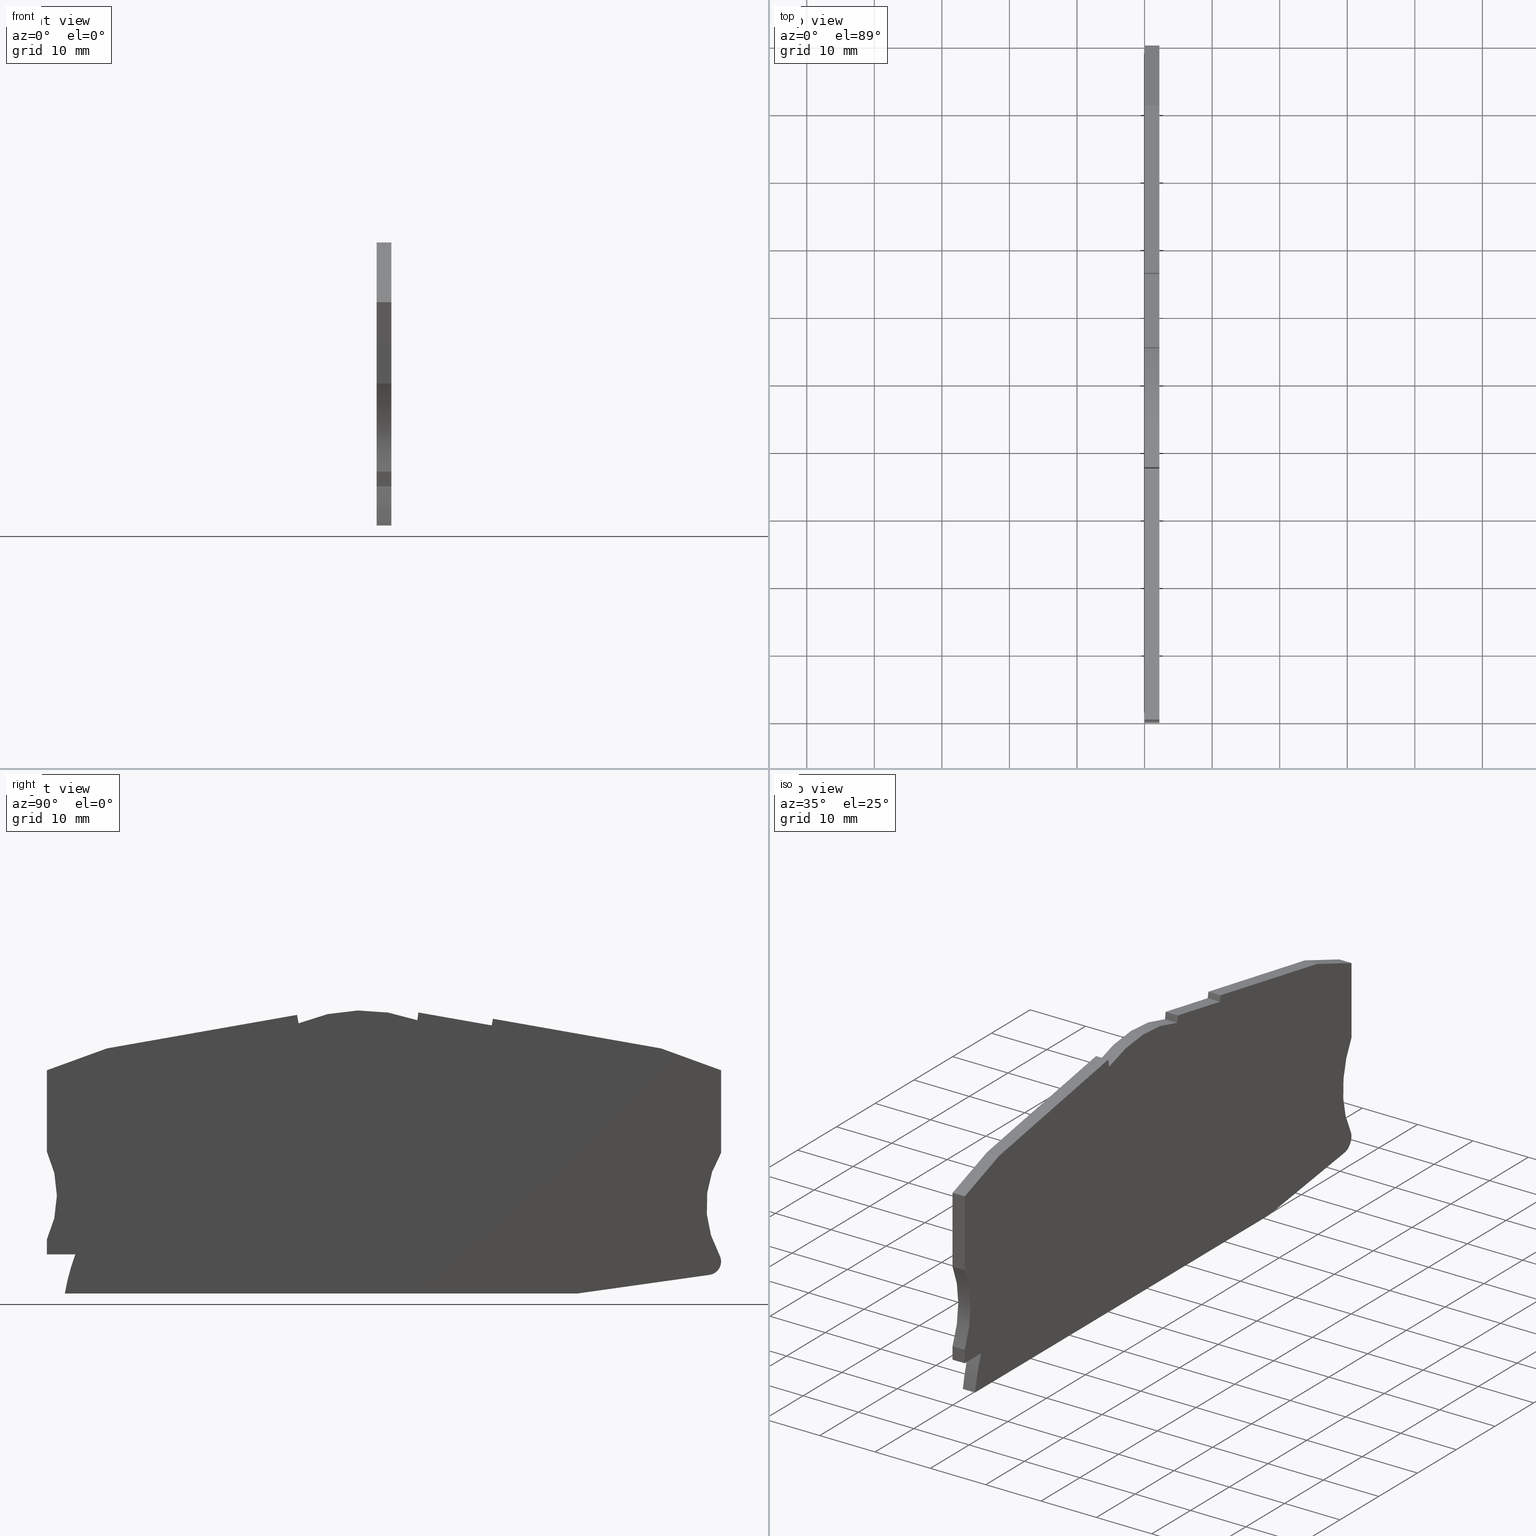
[diagram: canonical four-view strip — front | top / right | iso, engineering-drawing reading convention]
A machine part, canonical four-view strip (front | top / right | iso — engineering-drawing reading convention). The complete STEP part file that produces these views, byte-faithful:
ISO-10303-21;
HEADER;
FILE_DESCRIPTION(('Creo Elements/Direct Modeling STEP Export'),'2;1');
FILE_NAME(
'D:/temp/JobSpoolerServerData/JobServer Files/eb28436c-e55a-4aa5-81f3-d2
fd158beac8/work/output/model.stp','2018-03-26T16:09:23',(''),(''),
'Creo Elements/Direct Modeling STEP processor for AP214 (Solid Model)',
'Creo Elements/Direct Modeling 18.1I  14-Aug-2016 (C) Parametric Technol
ogy GmbH','');
FILE_SCHEMA(('AUTOMOTIVE_DESIGN { 1 0 10303 214 1 1 1 1 }'));
ENDSEC;
DATA;
#10=CARTESIAN_POINT('',(57.1002002229469,-73.9280653286887,
125.750000000016));
#20=DIRECTION('',(4.58048401121009E-25,-1.,-7.59071191710367E-13));
#30=DIRECTION('',(-1.,0.,-6.03432729529515E-13));
#40=AXIS2_PLACEMENT_3D('',#10,#20,#30);
#50=PLANE('',#40);
#60=CARTESIAN_POINT('',(51.6290292403125,-73.928065328687,
123.55000000003));
#70=DIRECTION('',(-1.,1.39415841791773E-36,-6.03432729531352E-13));
#80=VECTOR('',#70,1.);
#90=LINE('',#60,#80);
#100=CARTESIAN_POINT('',(62.5276099618369,-73.928065328687,
123.55000000002));
#110=VERTEX_POINT('',#100);
#120=CARTESIAN_POINT('',(-13.3272534839312,-73.928065328687,
123.549999999974));
#130=VERTEX_POINT('',#120);
#140=EDGE_CURVE('',#110,#130,#90,.T.);
#150=ORIENTED_EDGE('',*,*,#140,.F.);
#160=CARTESIAN_POINT('',(-13.3272534839299,-73.9280653286853,
121.349997599868));
#170=DIRECTION('',(-6.03432729529515E-13,-7.59071191710367E-13,1.));
#180=VECTOR('',#170,1.);
#190=LINE('',#160,#180);
#200=CARTESIAN_POINT('',(-13.3272534839325,-73.9280653286887,
125.749999999974));
#210=VERTEX_POINT('',#200);
#220=EDGE_CURVE('',#130,#210,#190,.T.);
#230=ORIENTED_EDGE('',*,*,#220,.F.);
#240=CARTESIAN_POINT('',(51.6290292403111,-73.9280653286887,
125.750000000013));
#250=DIRECTION('',(-1.,0.,-6.03432729529515E-13));
#260=VECTOR('',#250,1.);
#270=LINE('',#240,#260);
#280=CARTESIAN_POINT('',(62.5276099617414,-73.9280653286887,
125.75000000002));
#290=VERTEX_POINT('',#280);
#300=EDGE_CURVE('',#290,#210,#270,.T.);
#310=ORIENTED_EDGE('',*,*,#300,.T.);
#320=CARTESIAN_POINT('',(62.5276099618369,-73.928065328687,
123.55000000002));
#330=DIRECTION('',(-4.34062129139892E-11,-7.59071191710367E-13,1.));
#340=VECTOR('',#330,1.);
#350=LINE('',#320,#340);
#360=EDGE_CURVE('',#110,#290,#350,.T.);
#370=ORIENTED_EDGE('',*,*,#360,.T.);
#380=EDGE_LOOP('',(#370,#310,#230,#150));
#390=FACE_OUTER_BOUND('',#380,.T.);
#400=ADVANCED_FACE('',(#390),#50,.T.);
#410=COLOUR_RGB('',0.560784339904785,0.588235318660736,0.600000023841858
);
#420=FILL_AREA_STYLE_COLOUR('',#410);
#430=FILL_AREA_STYLE('',(#420));
#440=SURFACE_STYLE_FILL_AREA(#430);
#450=SURFACE_SIDE_STYLE('',(#440));
#460=SURFACE_STYLE_USAGE(.BOTH.,#450);
#470=PRESENTATION_STYLE_ASSIGNMENT((#460));
#480=CARTESIAN_POINT('',(60.1205879999577,-50.3933440000951,
125.750000000036));
#490=DIRECTION('',(6.03432729529515E-13,7.59071191710367E-13,-1.));
#500=DIRECTION('',(-1.,0.,-6.03432729529515E-13));
#510=AXIS2_PLACEMENT_3D('',#480,#490,#500);
#520=PLANE('',#510);
#530=CARTESIAN_POINT('',(51.6290292403111,-34.5553054080874,
125.750000000043));
#540=DIRECTION('',(0.984807753012213,-0.173648177666904,
4.62453901302037E-13));
#550=VECTOR('',#540,1.);
#560=LINE('',#530,#550);
#570=CARTESIAN_POINT('',(38.99381641264,-32.3273764795756,
125.750000000037));
#580=VERTEX_POINT('',#570);
#590=CARTESIAN_POINT('',(49.86000735476,-34.243379120201,
125.750000000042));
#600=VERTEX_POINT('',#590);
#610=EDGE_CURVE('',#580,#600,#560,.T.);
#620=ORIENTED_EDGE('',*,*,#610,.F.);
#630=CARTESIAN_POINT('',(42.8893596173484,-73.7758869043069,
125.750000000008));
#640=DIRECTION('',(0.173648177667083,0.984807753012181,
8.5232418851204E-13));
#650=VECTOR('',#640,1.);
#660=LINE('',#630,#650);
#670=CARTESIAN_POINT('',(50.0336555324318,-33.2585713671621,
125.750000000043));
#680=VERTEX_POINT('',#670);
#690=EDGE_CURVE('',#600,#680,#660,.T.);
#700=ORIENTED_EDGE('',*,*,#690,.F.);
#710=CARTESIAN_POINT('',(51.6290292403111,-33.539878796174,
125.750000000044));
#720=DIRECTION('',(-0.984807753012221,0.173648177666859,
-4.62453901302076E-13));
#730=VECTOR('',#720,1.);
#740=LINE('',#710,#730);
#750=CARTESIAN_POINT('',(74.9146995439338,-37.6457707345828,
125.750000000055));
#760=VERTEX_POINT('',#750);
#770=EDGE_CURVE('',#760,#680,#740,.T.);
#780=ORIENTED_EDGE('',*,*,#770,.T.);
#790=CARTESIAN_POINT('',(51.6290292403111,-29.1704798592096,
125.750000000047));
#800=DIRECTION('',(-0.939692620786971,0.34202014332275,
-3.07423645299275E-13));
#810=VECTOR('',#800,1.);
#820=LINE('',#790,#810);
#830=CARTESIAN_POINT('',(83.8152812045608,-40.8853175266754,
125.750000000057));
#840=VERTEX_POINT('',#830);
#850=EDGE_CURVE('',#840,#760,#820,.T.);
#860=ORIENTED_EDGE('',*,*,#850,.T.);
#870=CARTESIAN_POINT('',(83.8152812046628,-73.7758869043069,
125.750000000033));
#880=DIRECTION('',(-3.1022961977106E-12,1.,7.59071191708495E-13));
#890=VECTOR('',#880,1.);
#900=LINE('',#870,#890);
#910=CARTESIAN_POINT('',(83.8152812045986,-53.0960397776546,
125.750000000048));
#920=VERTEX_POINT('',#910);
#930=EDGE_CURVE('',#920,#840,#900,.T.);
#940=ORIENTED_EDGE('',*,*,#930,.T.);
#950=CARTESIAN_POINT('',(96.6417739742854,-60.8729982595484,
125.75000000005));
#960=DIRECTION('',(-6.03432729529515E-13,-7.59071191710367E-13,1.));
#970=DIRECTION('',(1.,6.20886675406309E-12,6.03432729534228E-13));
#980=AXIS2_PLACEMENT_3D('',#950,#960,#970);
#990=CIRCLE('',#980,14.9999999999975);
#1000=CARTESIAN_POINT('',(83.5595744610592,-68.2116667965563,
125.750000000037));
#1010=VERTEX_POINT('',#1000);
#1020=EDGE_CURVE('',#920,#1010,#990,.T.);
#1030=ORIENTED_EDGE('',*,*,#1020,.F.);
#1040=CARTESIAN_POINT('',(81.8152811926287,-69.1901559348242,
125.750000000035));
#1050=DIRECTION('',(-6.03432729529515E-13,-7.59071191710367E-13,1.));
#1060=DIRECTION('',(1.,-1.86201136935918E-24,6.03432729529515E-13));
#1070=AXIS2_PLACEMENT_3D('',#1040,#1050,#1060);
#1080=CIRCLE('',#1070,2.);
#1090=CARTESIAN_POINT('',(82.0943766377503,-71.1705866285149,
125.750000000033));
#1100=VERTEX_POINT('',#1090);
#1110=EDGE_CURVE('',#1100,#1010,#1080,.T.);
#1120=ORIENTED_EDGE('',*,*,#1110,.T.);
#1130=CARTESIAN_POINT('',(51.6290292403111,-75.4639656999217,
125.750000000012));
#1140=DIRECTION('',(0.990215346845371,0.139547722560786,
7.03455005633601E-13));
#1150=VECTOR('',#1140,1.);
#1160=LINE('',#1130,#1150);
#1170=EDGE_CURVE('',#290,#1100,#1160,.T.);
#1180=ORIENTED_EDGE('',*,*,#1170,.T.);
#1190=ORIENTED_EDGE('',*,*,#300,.F.);
#1200=CARTESIAN_POINT('',(18.3152811806622,-79.3280653286815,
125.749999999989));
#1210=DIRECTION('',(-6.03432729529515E-13,-7.59071191710367E-13,1.));
#1220=DIRECTION('',(1.,-4.27713420242861E-14,6.03432729529483E-13));
#1230=AXIS2_PLACEMENT_3D('',#1200,#1210,#1220);
#1240=CIRCLE('',#1230,32.1);
#1250=CARTESIAN_POINT('',(-11.7674381113161,-68.1280653286799,
125.749999999979));
#1260=VERTEX_POINT('',#1250);
#1270=EDGE_CURVE('',#1260,#210,#1240,.T.);
#1280=ORIENTED_EDGE('',*,*,#1270,.T.);
#1290=CARTESIAN_POINT('',(51.6290292403111,-68.128065328684,
125.750000000017));
#1300=DIRECTION('',(1.,-6.41431352477815E-14,6.03432729529466E-13));
#1310=VECTOR('',#1300,1.);
#1320=LINE('',#1290,#1310);
#1330=CARTESIAN_POINT('',(-15.9847188194089,-68.1280653286797,
125.749999999977));
#1340=VERTEX_POINT('',#1330);
#1350=EDGE_CURVE('',#1340,#1260,#1320,.T.);
#1360=ORIENTED_EDGE('',*,*,#1350,.T.);
#1370=CARTESIAN_POINT('',(-15.9847188194265,-73.7758869043069,
125.749999999972));
#1380=DIRECTION('',(-3.10598768926643E-12,-1.,-7.59071191712242E-13));
#1390=VECTOR('',#1380,1.);
#1400=LINE('',#1370,#1390);
#1410=CARTESIAN_POINT('',(-15.9847188194021,-65.928065328636,
125.749999999978));
#1420=VERTEX_POINT('',#1410);
#1430=EDGE_CURVE('',#1420,#1340,#1400,.T.);
#1440=ORIENTED_EDGE('',*,*,#1430,.T.);
#1450=CARTESIAN_POINT('',(-29.503224653977,-59.4280653285926,
125.749999999975));
#1460=DIRECTION('',(-6.03432729529515E-13,-7.59071191710367E-13,1.));
#1470=DIRECTION('',(1.,-3.108041601862E-12,6.03432729527156E-13));
#1480=AXIS2_PLACEMENT_3D('',#1450,#1460,#1470);
#1490=CIRCLE('',#1480,15.);
#1500=CARTESIAN_POINT('',(-15.9847188194686,-52.928065328411,
125.749999999988));
#1510=VERTEX_POINT('',#1500);
#1520=EDGE_CURVE('',#1420,#1510,#1490,.T.);
#1530=ORIENTED_EDGE('',*,*,#1520,.F.);
#1540=CARTESIAN_POINT('',(-15.9847188195332,-73.7758869043069,
125.749999999972));
#1550=DIRECTION('',(-3.10232395328517E-12,-1.,-7.5907119171224E-13));
#1560=VECTOR('',#1550,1.);
#1570=LINE('',#1540,#1560);
#1580=CARTESIAN_POINT('',(-15.9847188194312,-40.8853175266537,
125.749999999997));
#1590=VERTEX_POINT('',#1580);
#1600=EDGE_CURVE('',#1590,#1510,#1570,.T.);
#1610=ORIENTED_EDGE('',*,*,#1600,.T.);
#1620=CARTESIAN_POINT('',(51.6290292403111,-16.2759258059711,
125.750000000057));
#1630=DIRECTION('',(-0.939692620786971,-0.34202014332275,
-8.26658920861176E-13));
#1640=VECTOR('',#1630,1.);
#1650=LINE('',#1620,#1640);
#1660=CARTESIAN_POINT('',(-7.08413715914052,-37.6457707346835,
125.750000000005));
#1670=VERTEX_POINT('',#1660);
#1680=EDGE_CURVE('',#1670,#1590,#1650,.T.);
#1690=ORIENTED_EDGE('',*,*,#1680,.T.);
#1700=CARTESIAN_POINT('',(51.6290292403111,-27.2930553756389,
125.750000000048));
#1710=DIRECTION('',(-0.984807753012221,-0.173648177666859,
-7.26076559621909E-13));
#1720=VECTOR('',#1710,1.);
#1730=LINE('',#1700,#1720);
#1740=CARTESIAN_POINT('',(21.0467726849628,-32.6855323372928,
125.750000000026));
#1750=VERTEX_POINT('',#1740);
#1760=EDGE_CURVE('',#1750,#1670,#1730,.T.);
#1770=ORIENTED_EDGE('',*,*,#1760,.T.);
#1780=CARTESIAN_POINT('',(28.2921108420021,-73.7758869043069,
125.749999999999));
#1790=DIRECTION('',(0.173648177666871,-0.984807753012219,
-6.42754200857248E-13));
#1800=VECTOR('',#1790,1.);
#1810=LINE('',#1780,#1800);
#1820=CARTESIAN_POINT('',(21.267417926259,-33.9368736828415,
125.750000000025));
#1830=VERTEX_POINT('',#1820);
#1840=EDGE_CURVE('',#1750,#1830,#1810,.T.);
#1850=ORIENTED_EDGE('',*,*,#1840,.F.);
#1860=CARTESIAN_POINT('',(30.6491082792668,-56.0272309936748,
125.750000000014));
#1870=DIRECTION('',(-6.03432729529515E-13,-7.59071191710367E-13,1.));
#1880=DIRECTION('',(1.,1.14076930884894E-25,6.03432729529515E-13));
#1890=AXIS2_PLACEMENT_3D('',#1860,#1870,#1880);
#1900=CIRCLE('',#1890,24.);
#1910=CARTESIAN_POINT('',(38.8544495174018,-33.4734646748143,
125.750000000036));
#1920=VERTEX_POINT('',#1910);
#1930=EDGE_CURVE('',#1920,#1830,#1900,.T.);
#1940=ORIENTED_EDGE('',*,*,#1930,.T.);
#1950=CARTESIAN_POINT('',(33.9535845752113,-73.7758869043069,
125.750000000002));
#1960=DIRECTION('',(0.120713020131186,0.992687446667282,
8.26362630365169E-13));
#1970=VECTOR('',#1960,1.);
#1980=LINE('',#1950,#1970);
#1990=EDGE_CURVE('',#1920,#580,#1980,.T.);
#2000=ORIENTED_EDGE('',*,*,#1990,.F.);
#2010=EDGE_LOOP('',(#2000,#1940,#1850,#1770,#1690,#1610,#1530,#1440,
#1360,#1280,#1190,#1180,#1120,#1030,#940,#860,#780,#700,#620));
#2020=FACE_OUTER_BOUND('',#2010,.T.);
#2030=ADVANCED_FACE('',(#2020),#520,.F.);
#2040=COLOUR_RGB('',0.560784339904785,0.588235318660736,
0.600000023841858);
#2050=FILL_AREA_STYLE_COLOUR('',#2040);
#2060=FILL_AREA_STYLE('',(#2050));
#2070=SURFACE_STYLE_FILL_AREA(#2060);
#2080=SURFACE_SIDE_STYLE('',(#2070));
#2090=SURFACE_STYLE_USAGE(.BOTH.,#2080);
#2100=PRESENTATION_STYLE_ASSIGNMENT((#2090));
#2110=CARTESIAN_POINT('',(49.6138054164701,-34.1999670757759,
123.550000000042));
#2120=DIRECTION('',(0.173648177666904,0.984807753012213,
8.52324188511956E-13));
#2130=DIRECTION('',(-0.984807753012213,0.173648177666904,
-4.62453901302037E-13));
#2140=AXIS2_PLACEMENT_3D('',#2110,#2120,#2130);
#2150=PLANE('',#2140);
#2160=CARTESIAN_POINT('',(51.6290292403125,-34.5553054080857,
123.550000000043));
#2170=DIRECTION('',(0.984807753012213,-0.173648177666904,
4.62453901302037E-13));
#2180=VECTOR('',#2170,1.);
#2190=LINE('',#2160,#2180);
#2200=CARTESIAN_POINT('',(38.9938164126413,-32.327376479574,
123.550000000037));
#2210=VERTEX_POINT('',#2200);
#2220=CARTESIAN_POINT('',(49.8600073547613,-34.2433791201993,
123.550000000042));
#2230=VERTEX_POINT('',#2220);
#2240=EDGE_CURVE('',#2210,#2230,#2190,.T.);
#2250=ORIENTED_EDGE('',*,*,#2240,.F.);
#2260=CARTESIAN_POINT('',(49.8600073547613,-34.2433791201994,
123.550000000042));
#2270=DIRECTION('',(-6.03432729529515E-13,-7.59071191710367E-13,1.));
#2280=VECTOR('',#2270,1.);
#2290=LINE('',#2260,#2280);
#2300=EDGE_CURVE('',#2230,#600,#2290,.T.);
#2310=ORIENTED_EDGE('',*,*,#2300,.F.);
#2320=ORIENTED_EDGE('',*,*,#610,.T.);
#2330=CARTESIAN_POINT('',(38.9938164126413,-32.327376479574,
123.550000000037));
#2340=DIRECTION('',(6.03432729529515E-13,7.59071191710367E-13,-1.));
#2350=VECTOR('',#2340,1.);
#2360=LINE('',#2330,#2350);
#2370=EDGE_CURVE('',#580,#2210,#2360,.T.);
#2380=ORIENTED_EDGE('',*,*,#2370,.F.);
#2390=EDGE_LOOP('',(#2380,#2320,#2310,#2250));
#2400=FACE_OUTER_BOUND('',#2390,.T.);
#2410=ADVANCED_FACE('',(#2400),#2150,.T.);
#2420=COLOUR_RGB('',0.560784339904785,0.588235318660736,
0.600000023841858);
#2430=FILL_AREA_STYLE_COLOUR('',#2420);
#2440=FILL_AREA_STYLE('',(#2430));
#2450=SURFACE_STYLE_FILL_AREA(#2440);
#2460=SURFACE_SIDE_STYLE('',(#2450));
#2470=SURFACE_STYLE_USAGE(.BOTH.,#2460);
#2480=PRESENTATION_STYLE_ASSIGNMENT((#2470));
#2490=CARTESIAN_POINT('',(-14.4847188193382,-68.1280653286764,
121.349997599871));
#2500=DIRECTION('',(6.41431352473235E-14,1.,7.59071191710406E-13));
#2510=DIRECTION('',(1.,-6.41431352477815E-14,6.03432729529466E-13));
#2520=AXIS2_PLACEMENT_3D('',#2490,#2500,#2510);
#2530=PLANE('',#2520);
#2540=CARTESIAN_POINT('',(-11.7674381113135,-68.1280653286766,
121.349997599873));
#2550=DIRECTION('',(-6.03432729529515E-13,-7.59071191710367E-13,1.));
#2560=VECTOR('',#2550,1.);
#2570=LINE('',#2540,#2560);
#2580=CARTESIAN_POINT('',(-11.7674381113148,-68.1280653286783,
123.549999999979));
#2590=VERTEX_POINT('',#2580);
#2600=EDGE_CURVE('',#2590,#1260,#2570,.T.);
#2610=ORIENTED_EDGE('',*,*,#2600,.T.);
#2620=CARTESIAN_POINT('',(51.6290292403125,-68.1280653286823,
123.550000000017));
#2630=DIRECTION('',(1.,-6.41431352477815E-14,6.03432729529466E-13));
#2640=VECTOR('',#2630,1.);
#2650=LINE('',#2620,#2640);
#2660=CARTESIAN_POINT('',(-15.9847188194076,-68.128065328678,
123.549999999977));
#2670=VERTEX_POINT('',#2660);
#2680=EDGE_CURVE('',#2670,#2590,#2650,.T.);
#2690=ORIENTED_EDGE('',*,*,#2680,.T.);
#2700=CARTESIAN_POINT('',(-15.9847188194076,-68.128065328678,
123.549999999977));
#2710=DIRECTION('',(-6.03432729529515E-13,-7.59071191710367E-13,1.));
#2720=VECTOR('',#2710,1.);
#2730=LINE('',#2700,#2720);
#2740=EDGE_CURVE('',#2670,#1340,#2730,.T.);
#2750=ORIENTED_EDGE('',*,*,#2740,.F.);
#2760=ORIENTED_EDGE('',*,*,#1350,.F.);
#2770=EDGE_LOOP('',(#2760,#2750,#2690,#2610));
#2780=FACE_OUTER_BOUND('',#2770,.T.);
#2790=ADVANCED_FACE('',(#2780),#2530,.F.);
#2800=COLOUR_RGB('',0.560784339904785,0.588235318660736,
0.600000023841858);
#2810=FILL_AREA_STYLE_COLOUR('',#2800);
#2820=FILL_AREA_STYLE('',(#2810));
#2830=SURFACE_STYLE_FILL_AREA(#2820);
#2840=SURFACE_SIDE_STYLE('',(#2830));
#2850=SURFACE_STYLE_USAGE(.BOTH.,#2840);
#2860=PRESENTATION_STYLE_ASSIGNMENT((#2850));
#2870=CARTESIAN_POINT('',(49.8600073547613,-34.2433791201994,
123.550000000042));
#2880=DIRECTION('',(-0.984807753012181,0.173648177667083,
-4.62453901301883E-13));
#2890=DIRECTION('',(0.173648177667083,0.984807753012181,
8.5232418851204E-13));
#2900=AXIS2_PLACEMENT_3D('',#2870,#2880,#2890);
#2910=PLANE('',#2900);
#2920=CARTESIAN_POINT('',(50.0336555324331,-33.2585713671604,
123.550000000043));
#2930=DIRECTION('',(-6.03432729529515E-13,-7.59071191710367E-13,1.));
#2940=VECTOR('',#2930,1.);
#2950=LINE('',#2920,#2940);
#2960=CARTESIAN_POINT('',(50.0336555324331,-33.2585713671604,
123.550000000043));
#2970=VERTEX_POINT('',#2960);
#2980=EDGE_CURVE('',#2970,#680,#2950,.T.);
#2990=ORIENTED_EDGE('',*,*,#2980,.F.);
#3000=ORIENTED_EDGE('',*,*,#690,.T.);
#3010=ORIENTED_EDGE('',*,*,#2300,.T.);
#3020=CARTESIAN_POINT('',(42.8893596173497,-73.7758869043053,
123.550000000025));
#3030=DIRECTION('',(0.173648177667083,0.984807753012181,
2.69290567130139E-13));
#3040=VECTOR('',#3030,1.);
#3050=LINE('',#3020,#3040);
#3060=EDGE_CURVE('',#2230,#2970,#3050,.T.);
#3070=ORIENTED_EDGE('',*,*,#3060,.F.);
#3080=EDGE_LOOP('',(#3070,#3010,#3000,#2990));
#3090=FACE_OUTER_BOUND('',#3080,.T.);
#3100=ADVANCED_FACE('',(#3090),#2910,.T.);
#3110=COLOUR_RGB('',0.560784339904785,0.588235318660736,
0.600000023841858);
#3120=FILL_AREA_STYLE_COLOUR('',#3110);
#3130=FILL_AREA_STYLE('',(#3120));
#3140=SURFACE_STYLE_FILL_AREA(#3130);
#3150=SURFACE_SIDE_STYLE('',(#3140));
#3160=SURFACE_STYLE_USAGE(.BOTH.,#3150);
#3170=PRESENTATION_STYLE_ASSIGNMENT((#3160));
#3180=CARTESIAN_POINT('',(-15.9847188194296,-41.2354212957553,
121.349997599883));
#3190=DIRECTION('',(1.,-3.10232395328563E-12,6.0343272952716E-13));
#3200=DIRECTION('',(-3.10232395328517E-12,-1.,-7.5907119171224E-13));
#3210=AXIS2_PLACEMENT_3D('',#3180,#3190,#3200);
#3220=PLANE('',#3210);
#3230=CARTESIAN_POINT('',(-15.9847188194299,-40.885317526652,
123.549999999997));
#3240=DIRECTION('',(-6.03432729529515E-13,-7.59071191710367E-13,1.));
#3250=VECTOR('',#3240,1.);
#3260=LINE('',#3230,#3250);
#3270=CARTESIAN_POINT('',(-15.9847188194299,-40.885317526652,
123.549999999997));
#3280=VERTEX_POINT('',#3270);
#3290=EDGE_CURVE('',#3280,#1590,#3260,.T.);
#3300=ORIENTED_EDGE('',*,*,#3290,.F.);
#3310=ORIENTED_EDGE('',*,*,#1600,.F.);
#3320=CARTESIAN_POINT('',(-15.9847188194659,-52.9280653284077,
121.349997599874));
#3330=DIRECTION('',(-6.03432729529515E-13,-7.59071191710367E-13,1.));
#3340=VECTOR('',#3330,1.);
#3350=LINE('',#3320,#3340);
#3360=CARTESIAN_POINT('',(-15.9847188194672,-52.9280653284093,
123.549999999988));
#3370=VERTEX_POINT('',#3360);
#3380=EDGE_CURVE('',#3370,#1510,#3350,.T.);
#3390=ORIENTED_EDGE('',*,*,#3380,.T.);
#3400=CARTESIAN_POINT('',(-15.9847188195319,-73.7758869043053,
123.549999999989));
#3410=DIRECTION('',(-3.10232395328553E-12,-1.,-1.67037591384234E-13));
#3420=VECTOR('',#3410,1.);
#3430=LINE('',#3400,#3420);
#3440=EDGE_CURVE('',#3280,#3370,#3430,.T.);
#3450=ORIENTED_EDGE('',*,*,#3440,.T.);
#3460=EDGE_LOOP('',(#3450,#3390,#3310,#3300));
#3470=FACE_OUTER_BOUND('',#3460,.T.);
#3480=ADVANCED_FACE('',(#3470),#3220,.F.);
#3490=COLOUR_RGB('',0.560784339904785,0.588235318660736,
0.600000023841858);
#3500=FILL_AREA_STYLE_COLOUR('',#3490);
#3510=FILL_AREA_STYLE('',(#3500));
#3520=SURFACE_STYLE_FILL_AREA(#3510);
#3530=SURFACE_SIDE_STYLE('',(#3520));
#3540=SURFACE_STYLE_USAGE(.BOTH.,#3530);
#3550=PRESENTATION_STYLE_ASSIGNMENT((#3540));
#3560=CARTESIAN_POINT('',(41.0685574456481,-32.8394863216096,
123.550000000038));
#3570=DIRECTION('',(6.03432729529515E-13,7.59071191710367E-13,-1.));
#3580=DIRECTION('',(-1.,0.,-6.03432729529515E-13));
#3590=AXIS2_PLACEMENT_3D('',#3560,#3570,#3580);
#3600=PLANE('',#3590);
#3610=CARTESIAN_POINT('',(33.9535845752126,-73.7758869043053,
123.550000000002));
#3620=DIRECTION('',(0.120713020131186,0.992687446667282,
8.26362630365169E-13));
#3630=VECTOR('',#3620,1.);
#3640=LINE('',#3610,#3630);
#3650=CARTESIAN_POINT('',(38.8544495174031,-33.4734646748127,
123.550000000036));
#3660=VERTEX_POINT('',#3650);
#3670=EDGE_CURVE('',#3660,#2210,#3640,.T.);
#3680=ORIENTED_EDGE('',*,*,#3670,.T.);
#3690=CARTESIAN_POINT('',(30.6491082792681,-56.0272309936731,
123.55000000002));
#3700=DIRECTION('',(-1.61558713389263E-27,-7.40822371249996E-13,1.));
#3710=DIRECTION('',(1.,4.58048401121007E-25,2.12045811323408E-27));
#3720=AXIS2_PLACEMENT_3D('',#3690,#3700,#3710);
#3730=CIRCLE('',#3720,24.);
#3740=CARTESIAN_POINT('',(21.2674179262603,-33.9368736828398,
123.550000000025));
#3750=VERTEX_POINT('',#3740);
#3760=EDGE_CURVE('',#3660,#3750,#3730,.T.);
#3770=ORIENTED_EDGE('',*,*,#3760,.F.);
#3780=CARTESIAN_POINT('',(28.2921108420035,-73.7758869043053,
123.550000000016));
#3790=DIRECTION('',(0.173648177666871,-0.984807753012219,
-5.97205794753468E-14));
#3800=VECTOR('',#3790,1.);
#3810=LINE('',#3780,#3800);
#3820=CARTESIAN_POINT('',(21.0467726849641,-32.6855323372912,
123.550000000026));
#3830=VERTEX_POINT('',#3820);
#3840=EDGE_CURVE('',#3830,#3750,#3810,.T.);
#3850=ORIENTED_EDGE('',*,*,#3840,.T.);
#3860=CARTESIAN_POINT('',(51.6290292403125,-27.2930553756372,
123.550000000038));
#3870=DIRECTION('',(-0.984807753012221,-0.173648177666859,
-6.23256029753812E-13));
#3880=VECTOR('',#3870,1.);
#3890=LINE('',#3860,#3880);
#3900=CARTESIAN_POINT('',(-7.08413715913919,-37.6457707346819,
123.550000000005));
#3910=VERTEX_POINT('',#3900);
#3920=EDGE_CURVE('',#3830,#3910,#3890,.T.);
#3930=ORIENTED_EDGE('',*,*,#3920,.F.);
#3940=CARTESIAN_POINT('',(51.6290292403125,-16.2759258059694,
123.550000000039));
#3950=DIRECTION('',(-0.939692620786971,-0.34202014332275,
-6.24154241169547E-13));
#3960=VECTOR('',#3950,1.);
#3970=LINE('',#3940,#3960);
#3980=EDGE_CURVE('',#3910,#3280,#3970,.T.);
#3990=ORIENTED_EDGE('',*,*,#3980,.F.);
#4000=ORIENTED_EDGE('',*,*,#3440,.F.);
#4010=CARTESIAN_POINT('',(-29.5032246539757,-59.4280653285909,
123.549999999983));
#4020=DIRECTION('',(-6.03432729529515E-13,-7.59071191710367E-13,1.));
#4030=DIRECTION('',(1.,-3.108041601862E-12,6.03432729527156E-13));
#4040=AXIS2_PLACEMENT_3D('',#4010,#4020,#4030);
#4050=CIRCLE('',#4040,15.);
#4060=CARTESIAN_POINT('',(-15.9847188194008,-65.9280653286343,
123.549999999978));
#4070=VERTEX_POINT('',#4060);
#4080=EDGE_CURVE('',#4070,#3370,#4050,.T.);
#4090=ORIENTED_EDGE('',*,*,#4080,.T.);
#4100=CARTESIAN_POINT('',(-15.9847188194251,-73.7758869043053,
123.549999999989));
#4110=DIRECTION('',(-3.10598768926679E-12,-1.,-1.67037591384236E-13));
#4120=VECTOR('',#4110,1.);
#4130=LINE('',#4100,#4120);
#4140=EDGE_CURVE('',#4070,#2670,#4130,.T.);
#4150=ORIENTED_EDGE('',*,*,#4140,.F.);
#4160=ORIENTED_EDGE('',*,*,#2680,.F.);
#4170=CARTESIAN_POINT('',(18.3152811806635,-79.3280653286798,
123.549999999989));
#4180=DIRECTION('',(-6.03432729529515E-13,-7.59071191710367E-13,1.));
#4190=DIRECTION('',(1.,-4.27713420242861E-14,6.03432729529483E-13));
#4200=AXIS2_PLACEMENT_3D('',#4170,#4180,#4190);
#4210=CIRCLE('',#4200,32.1);
#4220=EDGE_CURVE('',#2590,#130,#4210,.T.);
#4230=ORIENTED_EDGE('',*,*,#4220,.F.);
#4240=ORIENTED_EDGE('',*,*,#140,.T.);
#4250=CARTESIAN_POINT('',(51.6290292403125,-75.4639656999333,
123.55000000003));
#4260=DIRECTION('',(-0.990215346845371,-0.139547722560786,
-6.20826657025874E-13));
#4270=VECTOR('',#4260,1.);
#4280=LINE('',#4250,#4270);
#4290=CARTESIAN_POINT('',(82.0943766377516,-71.1705866285132,
123.550000000033));
#4300=VERTEX_POINT('',#4290);
#4310=EDGE_CURVE('',#4300,#110,#4280,.T.);
#4320=ORIENTED_EDGE('',*,*,#4310,.T.);
#4330=CARTESIAN_POINT('',(81.8152811926301,-69.1901559348225,
123.550000000049));
#4340=DIRECTION('',(-6.03432729529515E-13,-7.59071191710367E-13,1.));
#4350=DIRECTION('',(1.,-1.86201136935918E-24,6.03432729529515E-13));
#4360=AXIS2_PLACEMENT_3D('',#4330,#4340,#4350);
#4370=CIRCLE('',#4360,2.);
#4380=CARTESIAN_POINT('',(83.5595744610605,-68.2116667965546,
123.550000000037));
#4390=VERTEX_POINT('',#4380);
#4400=EDGE_CURVE('',#4300,#4390,#4370,.T.);
#4410=ORIENTED_EDGE('',*,*,#4400,.F.);
#4420=CARTESIAN_POINT('',(96.6417739742867,-60.8729982595467,
123.55000000005));
#4430=DIRECTION('',(-6.03432729529515E-13,-7.59071191710367E-13,1.));
#4440=DIRECTION('',(1.,6.20886675406309E-12,6.03432729534228E-13));
#4450=AXIS2_PLACEMENT_3D('',#4420,#4430,#4440);
#4460=CIRCLE('',#4450,14.9999999999975);
#4470=CARTESIAN_POINT('',(83.8152812046,-53.096039777653,
123.550000000048));
#4480=VERTEX_POINT('',#4470);
#4490=EDGE_CURVE('',#4480,#4390,#4460,.T.);
#4500=ORIENTED_EDGE('',*,*,#4490,.T.);
#4510=CARTESIAN_POINT('',(83.8152812046641,-73.7758869043053,
123.550000000032));
#4520=DIRECTION('',(-3.1022961977106E-12,1.,7.59071191708495E-13));
#4530=VECTOR('',#4520,1.);
#4540=LINE('',#4510,#4530);
#4550=CARTESIAN_POINT('',(83.8152812045621,-40.8853175266737,
123.550000000057));
#4560=VERTEX_POINT('',#4550);
#4570=EDGE_CURVE('',#4480,#4560,#4540,.T.);
#4580=ORIENTED_EDGE('',*,*,#4570,.F.);
#4590=CARTESIAN_POINT('',(51.6290292403125,-29.170479859208,
123.550000000037));
#4600=DIRECTION('',(-0.939692620786971,0.34202014332275,
-5.09928324990903E-13));
#4610=VECTOR('',#4600,1.);
#4620=LINE('',#4590,#4610);
#4630=CARTESIAN_POINT('',(74.9146995439351,-37.6457707345811,
123.550000000055));
#4640=VERTEX_POINT('',#4630);
#4650=EDGE_CURVE('',#4560,#4640,#4620,.T.);
#4660=ORIENTED_EDGE('',*,*,#4650,.F.);
#4670=CARTESIAN_POINT('',(51.6290292403125,-33.5398787961723,
123.550000000037));
#4680=DIRECTION('',(-0.984807753012221,0.173648177666859,
-5.65274431170174E-13));
#4690=VECTOR('',#4680,1.);
#4700=LINE('',#4670,#4690);
#4710=EDGE_CURVE('',#4640,#2970,#4700,.T.);
#4720=ORIENTED_EDGE('',*,*,#4710,.F.);
#4730=ORIENTED_EDGE('',*,*,#3060,.T.);
#4740=ORIENTED_EDGE('',*,*,#2240,.T.);
#4750=EDGE_LOOP('',(#4740,#4730,#4720,#4660,#4580,#4500,#4410,#4320,
#4240,#4230,#4160,#4150,#4090,#4000,#3990,#3930,#3850,#3770,#3680));
#4760=FACE_OUTER_BOUND('',#4750,.T.);
#4770=ADVANCED_FACE('',(#4760),#3600,.T.);
#4780=COLOUR_RGB('',0.560784339904785,0.588235318660736,
0.600000023841858);
#4790=FILL_AREA_STYLE_COLOUR('',#4780);
#4800=FILL_AREA_STYLE('',(#4790));
#4810=SURFACE_STYLE_FILL_AREA(#4800);
#4820=SURFACE_SIDE_STYLE('',(#4810));
#4830=SURFACE_STYLE_USAGE(.BOTH.,#4820);
#4840=PRESENTATION_STYLE_ASSIGNMENT((#4830));
#4850=CARTESIAN_POINT('',(-29.5032246539744,-59.4280653285893,
121.349997599861));
#4860=DIRECTION('',(-6.03432729529515E-13,-7.59071191710367E-13,1.));
#4870=DIRECTION('',(1.,-3.108041601862E-12,6.03432729527156E-13));
#4880=AXIS2_PLACEMENT_3D('',#4850,#4860,#4870);
#4890=CYLINDRICAL_SURFACE('',#4880,15.);
#4900=CARTESIAN_POINT('',(-15.9847188193994,-65.9280653286326,
121.349997599864));
#4910=DIRECTION('',(-6.03432729529515E-13,-7.59071191710367E-13,1.));
#4920=VECTOR('',#4910,1.);
#4930=LINE('',#4900,#4920);
#4940=EDGE_CURVE('',#4070,#1420,#4930,.T.);
#4950=ORIENTED_EDGE('',*,*,#4940,.T.);
#4960=ORIENTED_EDGE('',*,*,#4080,.F.);
#4970=ORIENTED_EDGE('',*,*,#3380,.F.);
#4980=ORIENTED_EDGE('',*,*,#1520,.T.);
#4990=EDGE_LOOP('',(#4980,#4970,#4960,#4950));
#5000=FACE_OUTER_BOUND('',#4990,.T.);
#5010=ADVANCED_FACE('',(#5000),#4890,.F.);
#5020=COLOUR_RGB('',0.560784339904785,0.588235318660736,
0.600000023841858);
#5030=FILL_AREA_STYLE_COLOUR('',#5020);
#5040=FILL_AREA_STYLE('',(#5030));
#5050=SURFACE_STYLE_FILL_AREA(#5040);
#5060=SURFACE_SIDE_STYLE('',(#5050));
#5070=SURFACE_STYLE_USAGE(.BOTH.,#5060);
#5080=PRESENTATION_STYLE_ASSIGNMENT((#5070));
#5090=CARTESIAN_POINT('',(83.4862912763328,-40.7655749854238,
121.349997599943));
#5100=DIRECTION('',(-0.34202014332275,-0.939692620786971,
-9.19679746141527E-13));
#5110=DIRECTION('',(-0.939692620786971,0.34202014332275,
-3.07423645299275E-13));
#5120=AXIS2_PLACEMENT_3D('',#5090,#5100,#5110);
#5130=PLANE('',#5120);
#5140=CARTESIAN_POINT('',(74.9146995439351,-37.6457707345811,
123.550000000055));
#5150=DIRECTION('',(6.03432729529515E-13,7.59071191710367E-13,-1.));
#5160=VECTOR('',#5150,1.);
#5170=LINE('',#5140,#5160);
#5180=EDGE_CURVE('',#760,#4640,#5170,.T.);
#5190=ORIENTED_EDGE('',*,*,#5180,.F.);
#5200=ORIENTED_EDGE('',*,*,#4650,.T.);
#5210=CARTESIAN_POINT('',(83.8152812045621,-40.8853175266737,
123.550000000057));
#5220=DIRECTION('',(-6.03432729529515E-13,-7.59071191710367E-13,1.));
#5230=VECTOR('',#5220,1.);
#5240=LINE('',#5210,#5230);
#5250=EDGE_CURVE('',#4560,#840,#5240,.T.);
#5260=ORIENTED_EDGE('',*,*,#5250,.F.);
#5270=ORIENTED_EDGE('',*,*,#850,.F.);
#5280=EDGE_LOOP('',(#5270,#5260,#5200,#5190));
#5290=FACE_OUTER_BOUND('',#5280,.T.);
#5300=ADVANCED_FACE('',(#5290),#5130,.F.);
#5310=COLOUR_RGB('',0.560784339904785,0.588235318660736,
0.600000023841858);
#5320=FILL_AREA_STYLE_COLOUR('',#5310);
#5330=FILL_AREA_STYLE('',(#5320));
#5340=SURFACE_STYLE_FILL_AREA(#5330);
#5350=SURFACE_SIDE_STYLE('',(#5340));
#5360=SURFACE_STYLE_USAGE(.BOTH.,#5350);
#5370=PRESENTATION_STYLE_ASSIGNMENT((#5360));
#5380=CARTESIAN_POINT('',(58.2152811926058,-74.5357873364267,
123.550000000034));
#5390=DIRECTION('',(0.139547722560786,-0.990215346845371,
5.30559421375596E-12));
#5400=DIRECTION('',(-0.990215346845371,-0.139547722560786,
-2.22568161269314E-12));
#5410=AXIS2_PLACEMENT_3D('',#5380,#5390,#5400);
#5420=PLANE('',#5410);
#5430=CARTESIAN_POINT('',(82.094376637753,-71.1705866285116,
121.349997599919));
#5440=DIRECTION('',(-1.02019413064222E-12,2.19822203946232E-12,1.));
#5450=VECTOR('',#5440,1.);
#5460=LINE('',#5430,#5450);
#5470=EDGE_CURVE('',#4300,#1100,#5460,.T.);
#5480=ORIENTED_EDGE('',*,*,#5470,.T.);
#5490=ORIENTED_EDGE('',*,*,#4310,.F.);
#5500=ORIENTED_EDGE('',*,*,#360,.F.);
#5510=ORIENTED_EDGE('',*,*,#1170,.F.);
#5520=EDGE_LOOP('',(#5510,#5500,#5490,#5480));
#5530=FACE_OUTER_BOUND('',#5520,.T.);
#5540=ADVANCED_FACE('',(#5530),#5420,.T.);
#5550=COLOUR_RGB('',0.560784339904785,0.588235318660736,
0.600000023841858);
#5560=FILL_AREA_STYLE_COLOUR('',#5550);
#5570=FILL_AREA_STYLE('',(#5560));
#5580=SURFACE_STYLE_FILL_AREA(#5570);
#5590=SURFACE_SIDE_STYLE('',(#5580));
#5600=SURFACE_STYLE_USAGE(.BOTH.,#5590);
#5610=PRESENTATION_STYLE_ASSIGNMENT((#5600));
#5620=CARTESIAN_POINT('',(33.9152811925923,-30.4164670859195,
121.349997599921));
#5630=DIRECTION('',(0.173648177666859,-0.984807753012221,
-6.42754200857256E-13));
#5640=DIRECTION('',(-0.984807753012221,-0.173648177666859,
-7.26076559621909E-13));
#5650=AXIS2_PLACEMENT_3D('',#5620,#5630,#5640);
#5660=PLANE('',#5650);
#5670=ORIENTED_EDGE('',*,*,#1760,.F.);
#5680=CARTESIAN_POINT('',(-7.08413715913918,-37.6457707346819,
123.550000000005));
#5690=DIRECTION('',(6.03432729529515E-13,7.59071191710367E-13,-1.));
#5700=VECTOR('',#5690,1.);
#5710=LINE('',#5680,#5700);
#5720=EDGE_CURVE('',#1670,#3910,#5710,.T.);
#5730=ORIENTED_EDGE('',*,*,#5720,.F.);
#5740=ORIENTED_EDGE('',*,*,#3920,.T.);
#5750=CARTESIAN_POINT('',(21.0467726849641,-32.6855323372912,
123.550000000026));
#5760=DIRECTION('',(-6.03432729529515E-13,-7.59071191710367E-13,1.));
#5770=VECTOR('',#5760,1.);
#5780=LINE('',#5750,#5770);
#5790=EDGE_CURVE('',#3830,#1750,#5780,.T.);
#5800=ORIENTED_EDGE('',*,*,#5790,.F.);
#5810=EDGE_LOOP('',(#5800,#5740,#5730,#5670));
#5820=FACE_OUTER_BOUND('',#5810,.T.);
#5830=ADVANCED_FACE('',(#5820),#5660,.F.);
#5840=COLOUR_RGB('',0.560784339904785,0.588235318660736,
0.600000023841858);
#5850=FILL_AREA_STYLE_COLOUR('',#5840);
#5860=FILL_AREA_STYLE('',(#5850));
#5870=SURFACE_STYLE_FILL_AREA(#5860);
#5880=SURFACE_SIDE_STYLE('',(#5870));
#5890=SURFACE_STYLE_USAGE(.BOTH.,#5880);
#5900=PRESENTATION_STYLE_ASSIGNMENT((#5890));
#5910=CARTESIAN_POINT('',(96.641773974288,-60.872998259545,
121.349997599936));
#5920=DIRECTION('',(-6.03432729529515E-13,-7.59071191710367E-13,1.));
#5930=DIRECTION('',(1.,6.20886675406309E-12,6.03432729534228E-13));
#5940=AXIS2_PLACEMENT_3D('',#5910,#5920,#5930);
#5950=CYLINDRICAL_SURFACE('',#5940,14.9999999999975);
#5960=ORIENTED_EDGE('',*,*,#4490,.F.);
#5970=CARTESIAN_POINT('',(83.5595744610618,-68.2116667965529,
121.349997599922));
#5980=DIRECTION('',(-6.03432729529515E-13,-7.59071191710367E-13,1.));
#5990=VECTOR('',#5980,1.);
#6000=LINE('',#5970,#5990);
#6010=EDGE_CURVE('',#4390,#1010,#6000,.T.);
#6020=ORIENTED_EDGE('',*,*,#6010,.F.);
#6030=ORIENTED_EDGE('',*,*,#1020,.T.);
#6040=CARTESIAN_POINT('',(83.8152812046013,-53.0960397776513,
121.349997599934));
#6050=DIRECTION('',(6.03432729529515E-13,7.59071191710367E-13,-1.));
#6060=VECTOR('',#6050,1.);
#6070=LINE('',#6040,#6060);
#6080=EDGE_CURVE('',#920,#4480,#6070,.T.);
#6090=ORIENTED_EDGE('',*,*,#6080,.F.);
#6100=EDGE_LOOP('',(#6090,#6030,#6020,#5960));
#6110=FACE_OUTER_BOUND('',#6100,.T.);
#6120=ADVANCED_FACE('',(#6110),#5950,.F.);
#6130=COLOUR_RGB('',0.560784339904785,0.588235318660736,
0.600000023841858);
#6140=FILL_AREA_STYLE_COLOUR('',#6130);
#6150=FILL_AREA_STYLE('',(#6140));
#6160=SURFACE_STYLE_FILL_AREA(#6150);
#6170=SURFACE_SIDE_STYLE('',(#6160));
#6180=SURFACE_STYLE_USAGE(.BOTH.,#6170);
#6190=PRESENTATION_STYLE_ASSIGNMENT((#6180));
#6200=CARTESIAN_POINT('',(74.871619787077,-37.6381746111228,
121.34999759994));
#6210=DIRECTION('',(-0.173648177666859,-0.984807753012221,
-8.52324188511935E-13));
#6220=DIRECTION('',(-0.984807753012221,0.173648177666859,
-4.62453901302076E-13));
#6230=AXIS2_PLACEMENT_3D('',#6200,#6210,#6220);
#6240=PLANE('',#6230);
#6250=ORIENTED_EDGE('',*,*,#4710,.T.);
#6260=ORIENTED_EDGE('',*,*,#5180,.T.);
#6270=ORIENTED_EDGE('',*,*,#770,.F.);
#6280=ORIENTED_EDGE('',*,*,#2980,.T.);
#6290=EDGE_LOOP('',(#6280,#6270,#6260,#6250));
#6300=FACE_OUTER_BOUND('',#6290,.T.);
#6310=ADVANCED_FACE('',(#6300),#6240,.F.);
#6320=COLOUR_RGB('',0.560784339904785,0.588235318660736,
0.600000023841858);
#6330=FILL_AREA_STYLE_COLOUR('',#6320);
#6340=FILL_AREA_STYLE('',(#6330));
#6350=SURFACE_STYLE_FILL_AREA(#6340);
#6360=SURFACE_SIDE_STYLE('',(#6350));
#6370=SURFACE_STYLE_USAGE(.BOTH.,#6360);
#6380=PRESENTATION_STYLE_ASSIGNMENT((#6370));
#6390=CARTESIAN_POINT('',(83.8152812046004,-52.8214345276706,
121.349997599934));
#6400=DIRECTION('',(-1.,-3.10229619771014E-12,-6.0343272953187E-13));
#6410=DIRECTION('',(-3.1022961977106E-12,1.,7.59071191708495E-13));
#6420=AXIS2_PLACEMENT_3D('',#6390,#6400,#6410);
#6430=PLANE('',#6420);
#6440=ORIENTED_EDGE('',*,*,#6080,.T.);
#6450=ORIENTED_EDGE('',*,*,#930,.F.);
#6460=ORIENTED_EDGE('',*,*,#5250,.T.);
#6470=ORIENTED_EDGE('',*,*,#4570,.T.);
#6480=EDGE_LOOP('',(#6470,#6460,#6450,#6440));
#6490=FACE_OUTER_BOUND('',#6480,.T.);
#6500=ADVANCED_FACE('',(#6490),#6430,.F.);
#6510=COLOUR_RGB('',0.560784339904785,0.588235318660736,
0.600000023841858);
#6520=FILL_AREA_STYLE_COLOUR('',#6510);
#6530=FILL_AREA_STYLE('',(#6520));
#6540=SURFACE_STYLE_FILL_AREA(#6530);
#6550=SURFACE_SIDE_STYLE('',(#6540));
#6560=SURFACE_STYLE_USAGE(.BOTH.,#6550);
#6570=PRESENTATION_STYLE_ASSIGNMENT((#6560));
#6580=CARTESIAN_POINT('',(-15.9847188194005,-66.2614014462412,
121.349997599864));
#6590=DIRECTION('',(1.,-3.10598768926689E-12,6.03432729527157E-13));
#6600=DIRECTION('',(-3.10598768926643E-12,-1.,-7.59071191712242E-13));
#6610=AXIS2_PLACEMENT_3D('',#6580,#6590,#6600);
#6620=PLANE('',#6610);
#6630=ORIENTED_EDGE('',*,*,#2740,.T.);
#6640=ORIENTED_EDGE('',*,*,#4140,.T.);
#6650=ORIENTED_EDGE('',*,*,#4940,.F.);
#6660=ORIENTED_EDGE('',*,*,#1430,.F.);
#6670=EDGE_LOOP('',(#6660,#6650,#6640,#6630));
#6680=FACE_OUTER_BOUND('',#6670,.T.);
#6690=ADVANCED_FACE('',(#6680),#6620,.F.);
#6700=COLOUR_RGB('',0.560784339904785,0.588235318660736,
0.600000023841858);
#6710=FILL_AREA_STYLE_COLOUR('',#6700);
#6720=FILL_AREA_STYLE('',(#6710));
#6730=SURFACE_STYLE_FILL_AREA(#6720);
#6740=SURFACE_SIDE_STYLE('',(#6730));
#6750=SURFACE_STYLE_USAGE(.BOTH.,#6740);
#6760=PRESENTATION_STYLE_ASSIGNMENT((#6750));
#6770=CARTESIAN_POINT('',(18.3152811806648,-79.3280653286782,
121.349997599883));
#6780=DIRECTION('',(-6.03432729529515E-13,-7.59071191710367E-13,1.));
#6790=DIRECTION('',(1.,-4.27713420242861E-14,6.03432729529483E-13));
#6800=AXIS2_PLACEMENT_3D('',#6770,#6780,#6790);
#6810=CYLINDRICAL_SURFACE('',#6800,32.1);
#6820=ORIENTED_EDGE('',*,*,#1270,.F.);
#6830=ORIENTED_EDGE('',*,*,#220,.T.);
#6840=ORIENTED_EDGE('',*,*,#4220,.T.);
#6850=ORIENTED_EDGE('',*,*,#2600,.F.);
#6860=EDGE_LOOP('',(#6850,#6840,#6830,#6820));
#6870=FACE_OUTER_BOUND('',#6860,.T.);
#6880=ADVANCED_FACE('',(#6870),#6810,.T.);
#6890=COLOUR_RGB('',0.560784339904785,0.588235318660736,
0.600000023841858);
#6900=FILL_AREA_STYLE_COLOUR('',#6890);
#6910=FILL_AREA_STYLE('',(#6900));
#6920=SURFACE_STYLE_FILL_AREA(#6910);
#6930=SURFACE_SIDE_STYLE('',(#6920));
#6940=SURFACE_STYLE_USAGE(.BOTH.,#6930);
#6950=PRESENTATION_STYLE_ASSIGNMENT((#6940));
#6960=CARTESIAN_POINT('',(30.6491082792681,-56.0272309936724,
122.532497599678));
#6970=DIRECTION('',(-1.61558713389263E-27,-7.40822371249996E-13,1.));
#6980=DIRECTION('',(1.,4.58048401121008E-25,2.12045811323408E-27));
#6990=AXIS2_PLACEMENT_3D('',#6960,#6970,#6980);
#7000=CYLINDRICAL_SURFACE('',#6990,24.);
#7010=CARTESIAN_POINT('',(38.8544495174068,-33.4734646748141,
123.550000000036));
#7020=DIRECTION('',(-6.03432729529515E-13,-7.59071191710367E-13,1.));
#7030=VECTOR('',#7020,1.);
#7040=LINE('',#7010,#7030);
#7050=EDGE_CURVE('',#3660,#1920,#7040,.T.);
#7060=ORIENTED_EDGE('',*,*,#7050,.F.);
#7070=ORIENTED_EDGE('',*,*,#1930,.F.);
#7080=CARTESIAN_POINT('',(21.2674179262603,-33.93687368284,
123.550000000025));
#7090=DIRECTION('',(-6.03432729529515E-13,-7.59071191710367E-13,1.));
#7100=VECTOR('',#7090,1.);
#7110=LINE('',#7080,#7100);
#7120=EDGE_CURVE('',#3750,#1830,#7110,.T.);
#7130=ORIENTED_EDGE('',*,*,#7120,.T.);
#7140=ORIENTED_EDGE('',*,*,#3760,.T.);
#7150=EDGE_LOOP('',(#7140,#7130,#7070,#7060));
#7160=FACE_OUTER_BOUND('',#7150,.T.);
#7170=ADVANCED_FACE('',(#7160),#7000,.T.);
#7180=COLOUR_RGB('',0.560784339904785,0.588235318660736,
0.600000023841858);
#7190=FILL_AREA_STYLE_COLOUR('',#7180);
#7200=FILL_AREA_STYLE('',(#7190));
#7210=SURFACE_STYLE_FILL_AREA(#7200);
#7220=SURFACE_SIDE_STYLE('',(#7210));
#7230=SURFACE_STYLE_USAGE(.BOTH.,#7220);
#7240=PRESENTATION_STYLE_ASSIGNMENT((#7230));
#7250=CARTESIAN_POINT('',(21.1335967737981,-33.1779362138006,
123.550000000025));
#7260=DIRECTION('',(0.984807753012219,0.173648177666871,
7.26076559621917E-13));
#7270=DIRECTION('',(0.173648177666871,-0.984807753012219,
-6.42754200857248E-13));
#7280=AXIS2_PLACEMENT_3D('',#7250,#7260,#7270);
#7290=PLANE('',#7280);
#7300=ORIENTED_EDGE('',*,*,#3840,.F.);
#7310=ORIENTED_EDGE('',*,*,#7120,.F.);
#7320=ORIENTED_EDGE('',*,*,#1840,.T.);
#7330=ORIENTED_EDGE('',*,*,#5790,.T.);
#7340=EDGE_LOOP('',(#7330,#7320,#7310,#7300));
#7350=FACE_OUTER_BOUND('',#7340,.T.);
#7360=ADVANCED_FACE('',(#7350),#7290,.T.);
#7370=COLOUR_RGB('',0.560784339904785,0.588235318660736,
0.600000023841858);
#7380=FILL_AREA_STYLE_COLOUR('',#7370);
#7390=FILL_AREA_STYLE('',(#7380));
#7400=SURFACE_STYLE_FILL_AREA(#7390);
#7410=SURFACE_SIDE_STYLE('',(#7400));
#7420=SURFACE_STYLE_USAGE(.BOTH.,#7410);
#7430=PRESENTATION_STYLE_ASSIGNMENT((#7420));
#7440=CARTESIAN_POINT('',(-7.12524338472299,-37.6607321772361,
121.349997599891));
#7450=DIRECTION('',(0.34202014332275,-0.939692620786971,
-5.06907448862881E-13));
#7460=DIRECTION('',(-0.939692620786971,-0.34202014332275,
-8.26658920861176E-13));
#7470=AXIS2_PLACEMENT_3D('',#7440,#7450,#7460);
#7480=PLANE('',#7470);
#7490=ORIENTED_EDGE('',*,*,#5720,.T.);
#7500=ORIENTED_EDGE('',*,*,#1680,.F.);
#7510=ORIENTED_EDGE('',*,*,#3290,.T.);
#7520=ORIENTED_EDGE('',*,*,#3980,.T.);
#7530=EDGE_LOOP('',(#7520,#7510,#7500,#7490));
#7540=FACE_OUTER_BOUND('',#7530,.T.);
#7550=ADVANCED_FACE('',(#7540),#7480,.F.);
#7560=COLOUR_RGB('',0.560784339904785,0.588235318660736,
0.600000023841858);
#7570=FILL_AREA_STYLE_COLOUR('',#7560);
#7580=FILL_AREA_STYLE('',(#7570));
#7590=SURFACE_STYLE_FILL_AREA(#7580);
#7600=SURFACE_SIDE_STYLE('',(#7590));
#7610=SURFACE_STYLE_USAGE(.BOTH.,#7600);
#7620=PRESENTATION_STYLE_ASSIGNMENT((#7610));
#7630=CARTESIAN_POINT('',(38.8652342365371,-33.3847761862929,
123.550000000036));
#7640=DIRECTION('',(-0.992687446667282,0.120713020131186,
-5.07390319466186E-13));
#7650=DIRECTION('',(0.120713020131186,0.992687446667282,
8.26362630365169E-13));
#7660=AXIS2_PLACEMENT_3D('',#7630,#7640,#7650);
#7670=PLANE('',#7660);
#7680=ORIENTED_EDGE('',*,*,#2370,.T.);
#7690=ORIENTED_EDGE('',*,*,#1990,.T.);
#7700=ORIENTED_EDGE('',*,*,#7050,.T.);
#7710=ORIENTED_EDGE('',*,*,#3670,.F.);
#7720=EDGE_LOOP('',(#7710,#7700,#7690,#7680));
#7730=FACE_OUTER_BOUND('',#7720,.T.);
#7740=ADVANCED_FACE('',(#7730),#7670,.T.);
#7750=COLOUR_RGB('',0.560784339904785,0.588235318660736,
0.600000023841858);
#7760=FILL_AREA_STYLE_COLOUR('',#7750);
#7770=FILL_AREA_STYLE('',(#7760));
#7780=SURFACE_STYLE_FILL_AREA(#7770);
#7790=SURFACE_SIDE_STYLE('',(#7780));
#7800=SURFACE_STYLE_USAGE(.BOTH.,#7790);
#7810=PRESENTATION_STYLE_ASSIGNMENT((#7800));
#7820=CARTESIAN_POINT('',(81.8152811926314,-69.1901559348208,
121.34999759992));
#7830=DIRECTION('',(-6.03432729529515E-13,-7.59071191710367E-13,1.));
#7840=DIRECTION('',(1.,-1.86201136935918E-24,6.03432729529515E-13));
#7850=AXIS2_PLACEMENT_3D('',#7820,#7830,#7840);
#7860=CYLINDRICAL_SURFACE('',#7850,2.);
#7870=ORIENTED_EDGE('',*,*,#6010,.T.);
#7880=ORIENTED_EDGE('',*,*,#4400,.T.);
#7890=ORIENTED_EDGE('',*,*,#5470,.F.);
#7900=ORIENTED_EDGE('',*,*,#1110,.F.);
#7910=EDGE_LOOP('',(#7900,#7890,#7880,#7870));
#7920=FACE_OUTER_BOUND('',#7910,.T.);
#7930=ADVANCED_FACE('',(#7920),#7860,.T.);
#7940=COLOUR_RGB('',0.560784339904785,0.588235318660736,
0.600000023841858);
#7950=FILL_AREA_STYLE_COLOUR('',#7940);
#7960=FILL_AREA_STYLE('',(#7950));
#7970=SURFACE_STYLE_FILL_AREA(#7960);
#7980=SURFACE_SIDE_STYLE('',(#7970));
#7990=SURFACE_STYLE_USAGE(.BOTH.,#7980);
#8000=PRESENTATION_STYLE_ASSIGNMENT((#7990));
#8010=CLOSED_SHELL('',(#2030,#2410,#2790,#3100,#3480,#4770,#5010,#5300,
#5540,#5830,#6120,#6310,#6500,#6690,#6880,#7170,#7360,#7550,#7740,#7930,
#400));
#8020=MANIFOLD_SOLID_BREP('',#8010);
#8030=CARTESIAN_POINT('',(0.,0.,0.));
#8040=DIRECTION('',(0.,0.,1.));
#8050=DIRECTION('',(1.,0.,0.));
#8060=AXIS2_PLACEMENT_3D('',#8030,#8040,#8050);
#8070=APPLICATION_CONTEXT(' ');
#8080=APPLICATION_PROTOCOL_DEFINITION(' ','automotive_design',1998,#8070
);
#8090=PRODUCT_CONTEXT('',#8070,'mechanical');
#8100=PRODUCT_DEFINITION_CONTEXT('part definition',#8070,'design');
#8110=PRODUCT('D_DTME_6-select','D_DTME_6-select','',(#8090));
#8120=PRODUCT_RELATED_PRODUCT_CATEGORY('part',' ',(#8110));
#8130=PRODUCT_DEFINITION_FORMATION_WITH_SPECIFIED_SOURCE('','',#8110,
.BOUGHT.);
#8140=PRODUCT_DEFINITION('',' ',#8130,#8100);
#8150=PRODUCT_DEFINITION_SHAPE('','',#8140);
#8160=DIMENSIONAL_EXPONENTS(1.,0.,0.,0.,0.,0.,0.);
#8170=DIMENSIONAL_EXPONENTS(0.,0.,0.,0.,0.,0.,0.);
#8180=DIMENSIONAL_EXPONENTS(0.,0.,0.,0.,0.,0.,0.);
#8190=(LENGTH_UNIT() NAMED_UNIT(*) SI_UNIT(.MILLI.,.METRE.));
#8200=(NAMED_UNIT(*) PLANE_ANGLE_UNIT() SI_UNIT($,.RADIAN.));
#8210=(NAMED_UNIT(*) SI_UNIT($,.STERADIAN.) SOLID_ANGLE_UNIT());
#8220=(GEOMETRIC_REPRESENTATION_CONTEXT(3) 
GLOBAL_UNCERTAINTY_ASSIGNED_CONTEXT((#8230)) 
GLOBAL_UNIT_ASSIGNED_CONTEXT((#8190,#8200,#8210)) REPRESENTATION_CONTEXT
('',''));
#8230=UNCERTAINTY_MEASURE_WITH_UNIT(LENGTH_MEASURE(1.E-6),#8190,
'distance_accuracy_value','maximum gap value');
#8240=ADVANCED_BREP_SHAPE_REPRESENTATION('',(#8060,#8020),#8220);
#8250=SHAPE_DEFINITION_REPRESENTATION(#8150,#8240);
#8260=COLOUR_RGB('',0.560784339904785,0.588235318660736,
0.600000023841858);
#8270=FILL_AREA_STYLE_COLOUR('',#8260);
#8280=FILL_AREA_STYLE('',(#8270));
#8290=SURFACE_STYLE_FILL_AREA(#8280);
#8300=SURFACE_SIDE_STYLE('',(#8290));
#8310=SURFACE_STYLE_USAGE(.BOTH.,#8300);
#8320=PRESENTATION_STYLE_ASSIGNMENT((#8310));
#8330=STYLED_ITEM('',(#8320),#8020);
#8340=OVER_RIDING_STYLED_ITEM('',(#470),#400,#8330);
#8350=OVER_RIDING_STYLED_ITEM('',(#2100),#2030,#8330);
#8360=OVER_RIDING_STYLED_ITEM('',(#2480),#2410,#8330);
#8370=OVER_RIDING_STYLED_ITEM('',(#2860),#2790,#8330);
#8380=OVER_RIDING_STYLED_ITEM('',(#3170),#3100,#8330);
#8390=OVER_RIDING_STYLED_ITEM('',(#3550),#3480,#8330);
#8400=OVER_RIDING_STYLED_ITEM('',(#4840),#4770,#8330);
#8410=OVER_RIDING_STYLED_ITEM('',(#5080),#5010,#8330);
#8420=OVER_RIDING_STYLED_ITEM('',(#5370),#5300,#8330);
#8430=OVER_RIDING_STYLED_ITEM('',(#5610),#5540,#8330);
#8440=OVER_RIDING_STYLED_ITEM('',(#5900),#5830,#8330);
#8450=OVER_RIDING_STYLED_ITEM('',(#6190),#6120,#8330);
#8460=OVER_RIDING_STYLED_ITEM('',(#6380),#6310,#8330);
#8470=OVER_RIDING_STYLED_ITEM('',(#6570),#6500,#8330);
#8480=OVER_RIDING_STYLED_ITEM('',(#6760),#6690,#8330);
#8490=OVER_RIDING_STYLED_ITEM('',(#6950),#6880,#8330);
#8500=OVER_RIDING_STYLED_ITEM('',(#7240),#7170,#8330);
#8510=OVER_RIDING_STYLED_ITEM('',(#7430),#7360,#8330);
#8520=OVER_RIDING_STYLED_ITEM('',(#7620),#7550,#8330);
#8530=OVER_RIDING_STYLED_ITEM('',(#7810),#7740,#8330);
#8540=OVER_RIDING_STYLED_ITEM('',(#8000),#7930,#8330);
#8550=DRAUGHTING_MODEL('',(#8330,#8340,#8350,#8360,#8370,#8380,#8390,
#8400,#8410,#8420,#8430,#8440,#8450,#8460,#8470,#8480,#8490,#8500,#8510,
#8520,#8530,#8540),#8220);
#8560=CARTESIAN_POINT('',(-123.550000000075,15.9847188192794,
73.9280653284846));
#8570=DIRECTION('',(1.,6.03432729528939E-13,1.3626149435428E-12));
#8580=DIRECTION('',(-6.03432729529973E-13,1.,7.59182214012008E-13));
#8590=AXIS2_PLACEMENT_3D('',#8560,#8570,#8580);
#8600=ITEM_DEFINED_TRANSFORMATION('D_DTME_6-select','',#8060,#8590);
#8610=APPLICATION_CONTEXT(' ');
#8620=APPLICATION_PROTOCOL_DEFINITION(' ','automotive_design',1998,#8610
);
#8630=PRODUCT_CONTEXT('',#8610,'mechanical');
#8640=PRODUCT_DEFINITION_CONTEXT('part definition',#8610,'design');
#8650=PRODUCT('D_DTME_6-select','D_DTME_6-select','',(#8630));
#8660=PRODUCT_RELATED_PRODUCT_CATEGORY('part',' ',(#8650));
#8670=PRODUCT_DEFINITION_FORMATION_WITH_SPECIFIED_SOURCE('','',#8650,
.BOUGHT.);
#8680=PRODUCT_DEFINITION('',' ',#8670,#8640);
#8690=PRODUCT_DEFINITION_SHAPE('','',#8680);
#8700=DIMENSIONAL_EXPONENTS(1.,0.,0.,0.,0.,0.,0.);
#8710=DIMENSIONAL_EXPONENTS(0.,0.,0.,0.,0.,0.,0.);
#8720=DIMENSIONAL_EXPONENTS(0.,0.,0.,0.,0.,0.,0.);
#8730=(LENGTH_UNIT() NAMED_UNIT(*) SI_UNIT(.MILLI.,.METRE.));
#8740=(NAMED_UNIT(*) PLANE_ANGLE_UNIT() SI_UNIT($,.RADIAN.));
#8750=(NAMED_UNIT(*) SI_UNIT($,.STERADIAN.) SOLID_ANGLE_UNIT());
#8760=(GEOMETRIC_REPRESENTATION_CONTEXT(3) 
GLOBAL_UNCERTAINTY_ASSIGNED_CONTEXT((#8770)) 
GLOBAL_UNIT_ASSIGNED_CONTEXT((#8730,#8740,#8750)) REPRESENTATION_CONTEXT
('',''));
#8770=UNCERTAINTY_MEASURE_WITH_UNIT(LENGTH_MEASURE(1.E-6),#8730,
'distance_accuracy_value','maximum gap value');
#8780=SHAPE_REPRESENTATION('',(#8060,#8590),#8760);
#8790=SHAPE_DEFINITION_REPRESENTATION(#8690,#8780);
#8800=(REPRESENTATION_RELATIONSHIP('','',#8240,#8780) 
REPRESENTATION_RELATIONSHIP_WITH_TRANSFORMATION(#8600) 
SHAPE_REPRESENTATION_RELATIONSHIP());
#8810=NEXT_ASSEMBLY_USAGE_OCCURRENCE('1','','D_DTME_6-select',#8680,
#8140,'');
#8820=PRODUCT_DEFINITION_SHAPE('','',#8810);
#8830=CONTEXT_DEPENDENT_SHAPE_REPRESENTATION(#8800,#8820);
ENDSEC;
END-ISO-10303-21;
